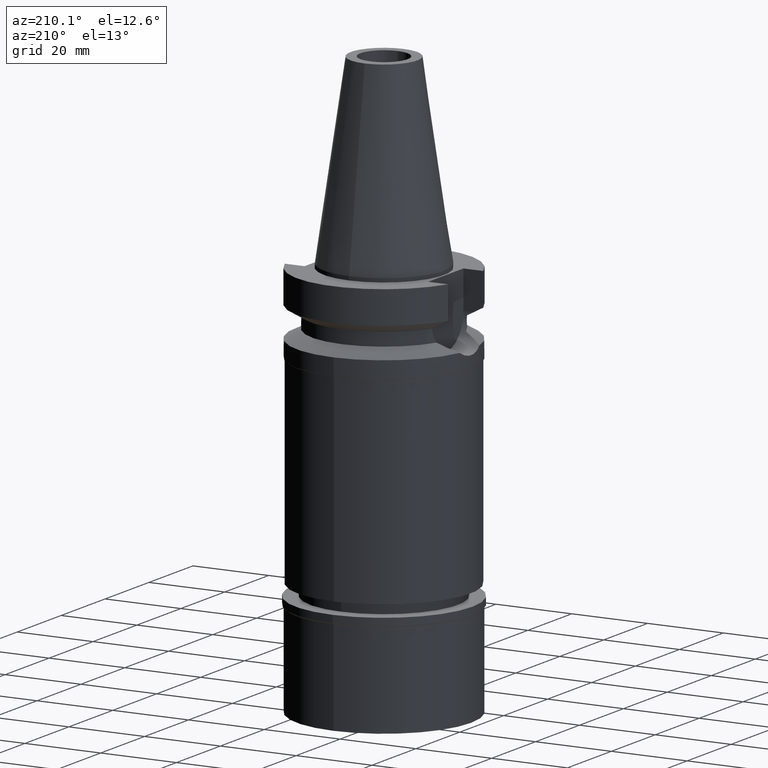
[diagram: clean part render]
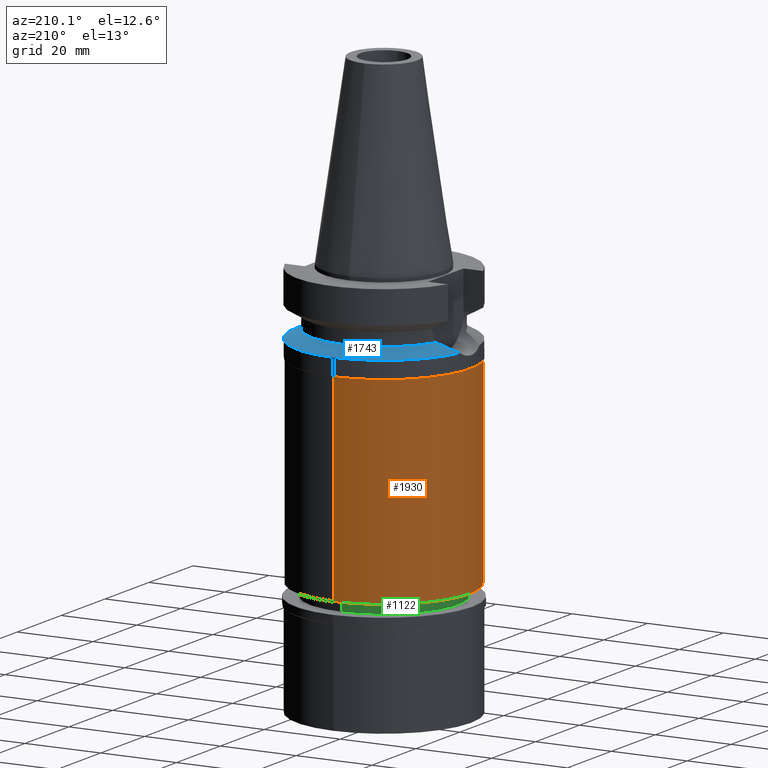
[diagram: same view with three faces highlighted in distinct colors, each labeled with its STEP entity id]
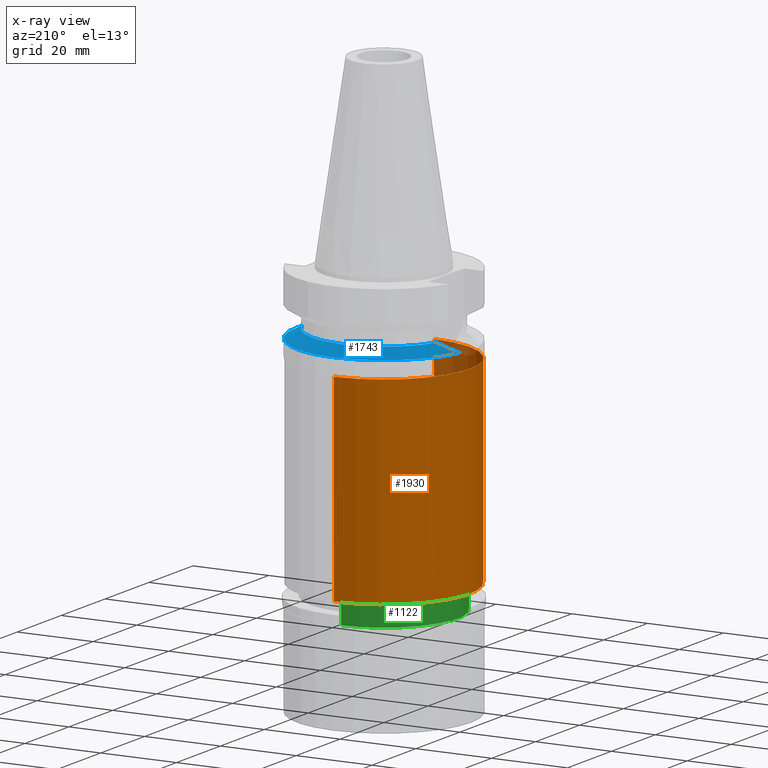
[diagram: x-ray of the same camera — body ghosted, the three highlighted faces saturated]
A machine part, auxiliary view with three faces highlighted in distinct colors.
The next image is the same camera in x-ray (body ghosted, the three faces saturated) — at least one of them is partly hidden behind the body in this view.
Their STEP definitions:

[orange] entity #1930 — the highlighted cylindrical surface (partial cylindrical patch) has radius 22.75 mm, axis along (0, 0, -1).
#43 = AXIS2_PLACEMENT_3D ( 'NONE', #1111, #604, #1080 ) ;
#85 = CYLINDRICAL_SURFACE ( 'NONE', #757, 22.75000000000000000 ) ;
#315 = DIRECTION ( 'NONE',  ( 0.0000000000000000000, 0.0000000000000000000, -1.000000000000000000 ) ) ;
#332 = FACE_OUTER_BOUND ( 'NONE', #1074, .T. ) ;
#400 = EDGE_CURVE ( 'NONE', #1499, #2944, #2940, .T. ) ;
#409 = CARTESIAN_POINT ( 'NONE',  ( 0.0000000000000000000, 0.0000000000000000000, -22.19999999999999929 ) ) ;
#579 = VERTEX_POINT ( 'NONE', #1039 ) ;
#604 = DIRECTION ( 'NONE',  ( 0.0000000000000000000, 0.0000000000000000000, 1.000000000000000000 ) ) ;
#684 = EDGE_CURVE ( 'NONE', #579, #1499, #1679, .T. ) ;
#757 = AXIS2_PLACEMENT_3D ( 'NONE', #1047, #315, #1258 ) ;
#975 = CARTESIAN_POINT ( 'NONE',  ( 0.0000000000000000000, 22.75000000000000000, -22.19999999999999929 ) ) ;
#1021 = ORIENTED_EDGE ( 'NONE', *, *, #684, .T. ) ;
#1039 = CARTESIAN_POINT ( 'NONE',  ( 0.0000000000000000000, -22.75000000000000000, -22.19999999999999929 ) ) ;
#1047 = CARTESIAN_POINT ( 'NONE',  ( 0.0000000000000000000, 1.904570702033999722E-14, 55.52000000000000313 ) ) ;
#1074 = EDGE_LOOP ( 'NONE', ( #1831, #1877, #1021, #1909 ) ) ;
#1080 = DIRECTION ( 'NONE',  ( 0.0000000000000000000, 1.000000000000000000, 0.0000000000000000000 ) ) ;
#1111 = CARTESIAN_POINT ( 'NONE',  ( 0.0000000000000000000, 1.904570702033999722E-14, -74.80000000000001137 ) ) ;
#1258 = DIRECTION ( 'NONE',  ( 0.0000000000000000000, -1.000000000000000000, 0.0000000000000000000 ) ) ;
#1334 = CIRCLE ( 'NONE', #43, 22.75000000000000000 ) ;
#1499 = VERTEX_POINT ( 'NONE', #975 ) ;
#1679 = CIRCLE ( 'NONE', #2907, 22.75000000000000000 ) ;
#1831 = ORIENTED_EDGE ( 'NONE', *, *, #2663, .T. ) ;
#1858 = DIRECTION ( 'NONE',  ( 0.0000000000000000000, 0.0000000000000000000, -1.000000000000000000 ) ) ;
#1877 = ORIENTED_EDGE ( 'NONE', *, *, #2709, .F. ) ;
#1909 = ORIENTED_EDGE ( 'NONE', *, *, #400, .T. ) ;
#1921 = CARTESIAN_POINT ( 'NONE',  ( 0.0000000000000000000, 22.75000000000000000, -74.80000000000001137 ) ) ;
#1930 = ADVANCED_FACE ( 'NONE', ( #332 ), #85, .T. ) ;
#1931 = VERTEX_POINT ( 'NONE', #1966 ) ;
#1966 = CARTESIAN_POINT ( 'NONE',  ( 0.0000000000000000000, -22.75000000000000000, -74.80000000000001137 ) ) ;
#1967 = VECTOR ( 'NONE', #2726, 1000.000000000000000 ) ;
#1988 = CARTESIAN_POINT ( 'NONE',  ( 0.0000000000000000000, 22.75000000000000000, -22.19999999999999929 ) ) ;
#2200 = DIRECTION ( 'NONE',  ( 0.0000000000000000000, 0.0000000000000000000, -1.000000000000000000 ) ) ;
#2225 = LINE ( 'NONE', #2317, #2263 ) ;
#2263 = VECTOR ( 'NONE', #1858, 1000.000000000000000 ) ;
#2317 = CARTESIAN_POINT ( 'NONE',  ( 0.0000000000000000000, -22.75000000000000000, -22.19999999999999929 ) ) ;
#2473 = DIRECTION ( 'NONE',  ( 0.0000000000000000000, -1.000000000000000000, 0.0000000000000000000 ) ) ;
#2663 = EDGE_CURVE ( 'NONE', #2944, #1931, #1334, .T. ) ;
#2709 = EDGE_CURVE ( 'NONE', #579, #1931, #2225, .T. ) ;
#2726 = DIRECTION ( 'NONE',  ( 0.0000000000000000000, 0.0000000000000000000, -1.000000000000000000 ) ) ;
#2907 = AXIS2_PLACEMENT_3D ( 'NONE', #409, #2200, #2473 ) ;
#2940 = LINE ( 'NONE', #1988, #1967 ) ;
#2944 = VERTEX_POINT ( 'NONE', #1921 ) ;

[blue] entity #1743 — the highlighted conical surface has half-angle 60 deg.
#30 = EDGE_CURVE ( 'NONE', #2931, #1395, #1535, .T. ) ;
#60 = B_SPLINE_CURVE_WITH_KNOTS ( 'NONE', 3,
 ( #2787, #2594, #2334, #2091 ),
 .UNSPECIFIED., .F., .F.,
 ( 4, 4 ),
 ( 0.0000000000000000000, 1.000000000000000000 ),
 .UNSPECIFIED. ) ;
#97 = CARTESIAN_POINT ( 'NONE',  ( 22.55786346208000026, 4.488072640470000430, -17.63279163029000074 ) ) ;
#145 = CARTESIAN_POINT ( 'NONE',  ( 0.0000000000000000000, 1.022848384030000006E-14, -15.32339055352999857 ) ) ;
#171 = DIRECTION ( 'NONE',  ( 0.0000000000000000000, 0.0000000000000000000, -1.000000000000000000 ) ) ;
#240 = DIRECTION ( 'NONE',  ( 0.0000000000000000000, 0.0000000000000000000, -1.000000000000000000 ) ) ;
#290 = EDGE_CURVE ( 'NONE', #538, #2931, #2659, .T. ) ;
#374 = AXIS2_PLACEMENT_3D ( 'NONE', #2135, #240, #1414 ) ;
#395 = CARTESIAN_POINT ( 'NONE',  ( 0.0000000000000000000, 1.022848384030000006E-14, -17.63279163029000074 ) ) ;
#451 = EDGE_CURVE ( 'NONE', #607, #2341, #821, .T. ) ;
#497 = CARTESIAN_POINT ( 'NONE',  ( -17.75736593456000278, 6.758398853743999624, -15.32339055352999857 ) ) ;
#538 = VERTEX_POINT ( 'NONE', #1704 ) ;
#562 = DIRECTION ( 'NONE',  ( 0.0000000000000000000, 1.000000000000000000, 0.0000000000000000000 ) ) ;
#607 = VERTEX_POINT ( 'NONE', #2913 ) ;
#645 = DIRECTION ( 'NONE',  ( 0.0000000000000000000, 1.000000000000000000, 0.0000000000000000000 ) ) ;
#650 = DIRECTION ( 'NONE',  ( -0.9807766722643714852, 0.1951335930638943839, 0.0000000000000000000 ) ) ;
#689 = EDGE_CURVE ( 'NONE', #2341, #538, #60, .T. ) ;
#821 = CIRCLE ( 'NONE', #2414, 23.00000000000000000 ) ;
#882 = CARTESIAN_POINT ( 'NONE',  ( 0.0000000000000000000, 1.022848384030000006E-14, -17.63279163029000074 ) ) ;
#914 = ORIENTED_EDGE ( 'NONE', *, *, #290, .F. ) ;
#1225 = CARTESIAN_POINT ( 'NONE',  ( -21.37344794595877673, 5.343258989437599915, -17.05846002343381329 ) ) ;
#1319 = ORIENTED_EDGE ( 'NONE', *, *, #451, .F. ) ;
#1389 = AXIS2_PLACEMENT_3D ( 'NONE', #145, #2191, #562 ) ;
#1395 = VERTEX_POINT ( 'NONE', #2512 ) ;
#1414 = DIRECTION ( 'NONE',  ( 0.0000000000000000000, -1.000000000000000000, 0.0000000000000000000 ) ) ;
#1517 = CIRCLE ( 'NONE', #1999, 23.00000000000001066 ) ;
#1535 = B_SPLINE_CURVE_WITH_KNOTS ( 'NONE', 3,
 ( #497, #2623, #1225, #1687 ),
 .UNSPECIFIED., .F., .F.,
 ( 4, 4 ),
 ( 0.0000000000000000000, 1.000000000000000000 ),
 .UNSPECIFIED. ) ;
#1687 = CARTESIAN_POINT ( 'NONE',  ( -22.55786346208000026, 4.488072640470000430, -17.63279163029000074 ) ) ;
#1704 = CARTESIAN_POINT ( 'NONE',  ( 17.75736593456000278, 6.758398853743999624, -15.32339055352999857 ) ) ;
#1716 = EDGE_LOOP ( 'NONE', ( #914, #2757, #1319, #2781, #2801 ) ) ;
#1742 = DIRECTION ( 'NONE',  ( 0.0000000000000000000, 0.0000000000000000000, -1.000000000000000000 ) ) ;
#1743 = ADVANCED_FACE ( 'NONE', ( #2819 ), #2886, .T. ) ;
#1870 = CARTESIAN_POINT ( 'NONE',  ( -17.75736593456000278, 6.758398853743999624, -15.32339055352999857 ) ) ;
#1999 = AXIS2_PLACEMENT_3D ( 'NONE', #395, #171, #650 ) ;
#2063 = EDGE_CURVE ( 'NONE', #1395, #607, #1517, .T. ) ;
#2091 = CARTESIAN_POINT ( 'NONE',  ( 17.75736593456000278, 6.758398853743999624, -15.32339055352999857 ) ) ;
#2135 = CARTESIAN_POINT ( 'NONE',  ( 0.0000000000000000000, 1.022848384030000006E-14, -16.47809109191000232 ) ) ;
#2191 = DIRECTION ( 'NONE',  ( 0.0000000000000000000, 0.0000000000000000000, 1.000000000000000000 ) ) ;
#2334 = CARTESIAN_POINT ( 'NONE',  ( 19.77328210357706340, 6.137069160724234251, -16.28355951939463964 ) ) ;
#2341 = VERTEX_POINT ( 'NONE', #97 ) ;
#2414 = AXIS2_PLACEMENT_3D ( 'NONE', #882, #1742, #645 ) ;
#2512 = CARTESIAN_POINT ( 'NONE',  ( -22.55786346208000026, 4.488072640470000430, -17.63279163029000074 ) ) ;
#2594 = CARTESIAN_POINT ( 'NONE',  ( 21.37344794608372922, 5.343258989363285139, -17.05846002348370760 ) ) ;
#2623 = CARTESIAN_POINT ( 'NONE',  ( -19.77328210345211090, 6.137069160772876231, -16.28355951931949974 ) ) ;
#2659 = CIRCLE ( 'NONE', #1389, 19.00000000000000000 ) ;
#2757 = ORIENTED_EDGE ( 'NONE', *, *, #689, .F. ) ;
#2781 = ORIENTED_EDGE ( 'NONE', *, *, #2063, .F. ) ;
#2787 = CARTESIAN_POINT ( 'NONE',  ( 22.55786346208000026, 4.488072640470000430, -17.63279163029000074 ) ) ;
#2801 = ORIENTED_EDGE ( 'NONE', *, *, #30, .F. ) ;
#2819 = FACE_OUTER_BOUND ( 'NONE', #1716, .T. ) ;
#2886 = CONICAL_SURFACE ( 'NONE', #374, 21.00000000000000000, 1.047197551196400456 ) ;
#2913 = CARTESIAN_POINT ( 'NONE',  ( 0.0000000000000000000, 23.00000000000000000, -17.63279163029000074 ) ) ;
#2931 = VERTEX_POINT ( 'NONE', #1870 ) ;

[green] entity #1122 — the highlighted cylindrical surface (partial cylindrical patch) has radius 19.5 mm, axis along (0, 0, -1).
#133 = DIRECTION ( 'NONE',  ( 0.0000000000000000000, -1.000000000000000000, 0.0000000000000000000 ) ) ;
#220 = VERTEX_POINT ( 'NONE', #1062 ) ;
#394 = CIRCLE ( 'NONE', #770, 19.50000000000000000 ) ;
#419 = CARTESIAN_POINT ( 'NONE',  ( 0.0000000000000000000, 1.904570702033999722E-14, 55.52000000000000313 ) ) ;
#445 = ORIENTED_EDGE ( 'NONE', *, *, #929, .T. ) ;
#638 = ORIENTED_EDGE ( 'NONE', *, *, #2224, .T. ) ;
#691 = CARTESIAN_POINT ( 'NONE',  ( 0.0000000000000000000, 1.904570702033999722E-14, -74.80000000000001137 ) ) ;
#730 = EDGE_CURVE ( 'NONE', #1824, #936, #394, .T. ) ;
#770 = AXIS2_PLACEMENT_3D ( 'NONE', #1040, #1902, #2372 ) ;
#830 = AXIS2_PLACEMENT_3D ( 'NONE', #691, #1401, #1573 ) ;
#862 = CYLINDRICAL_SURFACE ( 'NONE', #2140, 19.50000000000000000 ) ;
#929 = EDGE_CURVE ( 'NONE', #220, #1289, #2425, .T. ) ;
#936 = VERTEX_POINT ( 'NONE', #2513 ) ;
#1040 = CARTESIAN_POINT ( 'NONE',  ( 0.0000000000000000000, 1.904570702033999722E-14, -81.00000000000000000 ) ) ;
#1062 = CARTESIAN_POINT ( 'NONE',  ( 0.0000000000000000000, -19.50000000000000000, -74.80000000000001137 ) ) ;
#1122 = ADVANCED_FACE ( 'NONE', ( #1995 ), #862, .T. ) ;
#1149 = CARTESIAN_POINT ( 'NONE',  ( 0.0000000000000000000, 19.50000000000000000, -74.80000000000001137 ) ) ;
#1287 = CARTESIAN_POINT ( 'NONE',  ( 0.0000000000000000000, 19.50000000000000000, -81.00000000000000000 ) ) ;
#1289 = VERTEX_POINT ( 'NONE', #1149 ) ;
#1401 = DIRECTION ( 'NONE',  ( 0.0000000000000000000, 0.0000000000000000000, -1.000000000000000000 ) ) ;
#1555 = CARTESIAN_POINT ( 'NONE',  ( 0.0000000000000000000, -19.50000000000000000, -74.80000000000001137 ) ) ;
#1573 = DIRECTION ( 'NONE',  ( 0.0000000000000000000, -1.000000000000000000, 0.0000000000000000000 ) ) ;
#1593 = LINE ( 'NONE', #2792, #1895 ) ;
#1824 = VERTEX_POINT ( 'NONE', #1287 ) ;
#1875 = DIRECTION ( 'NONE',  ( 0.0000000000000000000, 0.0000000000000000000, -1.000000000000000000 ) ) ;
#1895 = VECTOR ( 'NONE', #1875, 1000.000000000000000 ) ;
#1902 = DIRECTION ( 'NONE',  ( 0.0000000000000000000, 0.0000000000000000000, 1.000000000000000000 ) ) ;
#1957 = VECTOR ( 'NONE', #2253, 1000.000000000000000 ) ;
#1995 = FACE_OUTER_BOUND ( 'NONE', #2721, .T. ) ;
#2014 = LINE ( 'NONE', #1555, #1957 ) ;
#2140 = AXIS2_PLACEMENT_3D ( 'NONE', #419, #2456, #133 ) ;
#2224 = EDGE_CURVE ( 'NONE', #1289, #1824, #1593, .T. ) ;
#2250 = ORIENTED_EDGE ( 'NONE', *, *, #2524, .F. ) ;
#2253 = DIRECTION ( 'NONE',  ( 0.0000000000000000000, 0.0000000000000000000, -1.000000000000000000 ) ) ;
#2372 = DIRECTION ( 'NONE',  ( 0.0000000000000000000, 1.000000000000000000, 0.0000000000000000000 ) ) ;
#2425 = CIRCLE ( 'NONE', #830, 19.50000000000000000 ) ;
#2456 = DIRECTION ( 'NONE',  ( 0.0000000000000000000, 0.0000000000000000000, -1.000000000000000000 ) ) ;
#2513 = CARTESIAN_POINT ( 'NONE',  ( 0.0000000000000000000, -19.50000000000000000, -81.00000000000000000 ) ) ;
#2524 = EDGE_CURVE ( 'NONE', #220, #936, #2014, .T. ) ;
#2721 = EDGE_LOOP ( 'NONE', ( #2976, #2250, #445, #638 ) ) ;
#2792 = CARTESIAN_POINT ( 'NONE',  ( 0.0000000000000000000, 19.50000000000000000, -74.80000000000001137 ) ) ;
#2976 = ORIENTED_EDGE ( 'NONE', *, *, #730, .T. ) ;